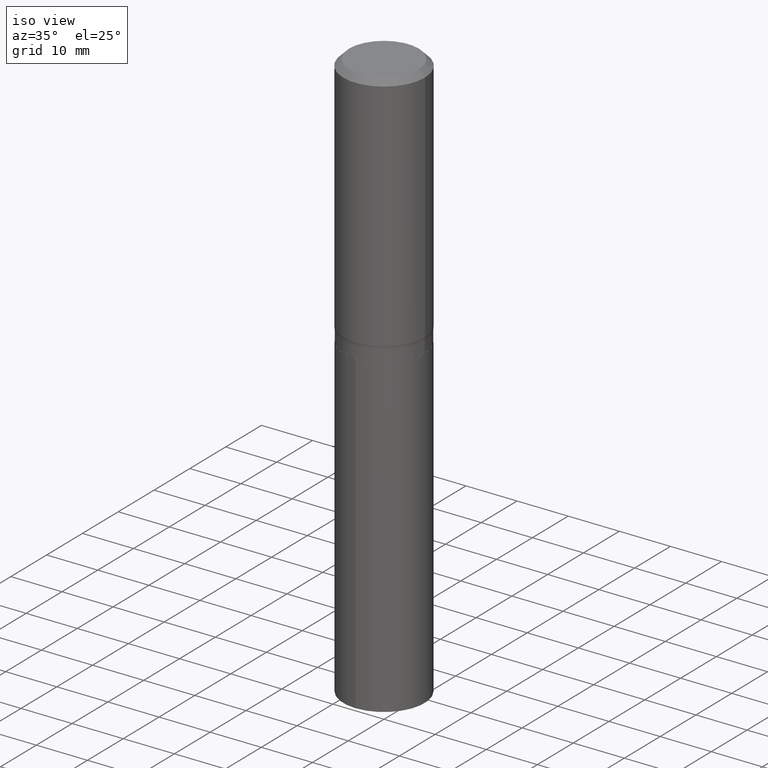
[diagram: clean part render]
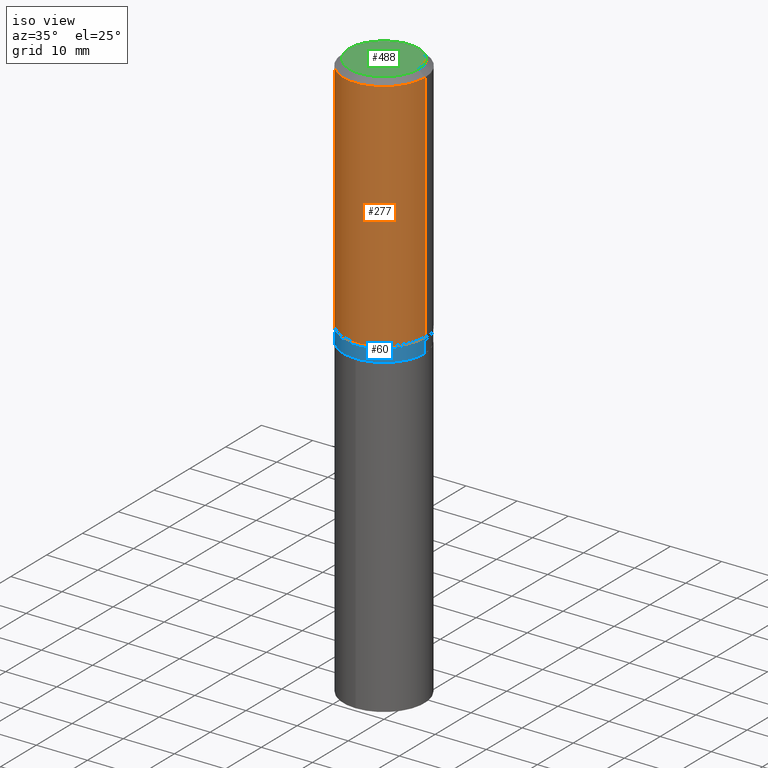
[diagram: same view with three faces highlighted in distinct colors, each labeled with its STEP entity id]
A machine part, iso view with three faces highlighted in distinct colors.
Their STEP definitions:

[orange] entity #277 — the highlighted cylindrical surface (partial cylindrical patch) has radius 7.9997 mm, axis along (-0, 0, 1).
#6 = DIRECTION ( 'NONE',  ( 1.000000000000000000, -6.982962677686267499E-15, 0.000000000000000000 ) ) ;
#76 = LINE ( 'NONE', #77, #156 ) ;
#77 = CARTESIAN_POINT ( 'NONE',  ( 0.3149500000000001743, -2.199284095337290660E-15, 1.535751875536930690E-29 ) ) ;
#89 = AXIS2_PLACEMENT_3D ( 'NONE', #204, #395, #462 ) ;
#97 = CARTESIAN_POINT ( 'NONE',  ( 0.3149500000000002853, -8.677044047699501290E-15, -1.855304188596502035 ) ) ;
#115 = CYLINDRICAL_SURFACE ( 'NONE', #89, 0.3149500000000001743 ) ;
#119 = VERTEX_POINT ( 'NONE', #120 ) ;
#120 = CARTESIAN_POINT ( 'NONE',  ( 0.3149500000000000077, -2.364230402487588149E-15, -0.04724250000000029120 ) ) ;
#125 = EDGE_LOOP ( 'NONE', ( #232, #382, #471, #441 ) ) ;
#132 = CARTESIAN_POINT ( 'NONE',  ( -0.3149500000000001743, 2.237854346276436774E-15, -1.549218606675783237E-29 ) ) ;
#134 = CARTESIAN_POINT ( 'NONE',  ( -0.3149500000000002853, -4.239905606085773857E-15, -1.855304188596502035 ) ) ;
#142 = EDGE_CURVE ( 'NONE', #465, #119, #76, .T. ) ;
#156 = VECTOR ( 'NONE', #283, 39.37007874015748143 ) ;
#159 = FACE_OUTER_BOUND ( 'NONE', #125, .T. ) ;
#167 = EDGE_CURVE ( 'NONE', #411, #465, #202, .T. ) ;
#202 = CIRCLE ( 'NONE', #324, 0.3149500000000002853 ) ;
#204 = CARTESIAN_POINT ( 'NONE',  ( 0.000000000000000000, 0.000000000000000000, 0.000000000000000000 ) ) ;
#214 = DIRECTION ( 'NONE',  ( -2.445468806185136877E-29, 3.491481338843145188E-15, 1.000000000000000000 ) ) ;
#232 = ORIENTED_EDGE ( 'NONE', *, *, #295, .F. ) ;
#246 = VERTEX_POINT ( 'NONE', #425 ) ;
#277 = ADVANCED_FACE ( 'NONE', ( #159 ), #115, .T. ) ;
#283 = DIRECTION ( 'NONE',  ( -2.445468806185136877E-29, 3.491481338843145188E-15, 1.000000000000000000 ) ) ;
#295 = EDGE_CURVE ( 'NONE', #411, #246, #475, .T. ) ;
#302 = DIRECTION ( 'NONE',  ( -2.445468806185136597E-29, 3.491481338843145583E-15, 1.000000000000000000 ) ) ;
#308 = VECTOR ( 'NONE', #214, 39.37007874015748143 ) ;
#324 = AXIS2_PLACEMENT_3D ( 'NONE', #468, #430, #6 ) ;
#333 = AXIS2_PLACEMENT_3D ( 'NONE', #437, #302, #440 ) ;
#382 = ORIENTED_EDGE ( 'NONE', *, *, #167, .T. ) ;
#395 = DIRECTION ( 'NONE',  ( -2.445468806185136597E-29, 3.491481338843145583E-15, 1.000000000000000000 ) ) ;
#411 = VERTEX_POINT ( 'NONE', #134 ) ;
#418 = CIRCLE ( 'NONE', #333, 0.3149500000000000077 ) ;
#425 = CARTESIAN_POINT ( 'NONE',  ( -0.3149500000000000077, -1.083498783479817878E-15, -0.04724250000000029120 ) ) ;
#430 = DIRECTION ( 'NONE',  ( -2.445468806185136597E-29, 3.491481338843145583E-15, 1.000000000000000000 ) ) ;
#437 = CARTESIAN_POINT ( 'NONE',  ( 1.155300600762020273E-30, -1.649463071502983032E-16, -0.04724250000000029120 ) ) ;
#440 = DIRECTION ( 'NONE',  ( 1.000000000000000000, -6.982962677686266711E-15, 0.000000000000000000 ) ) ;
#441 = ORIENTED_EDGE ( 'NONE', *, *, #442, .F. ) ;
#442 = EDGE_CURVE ( 'NONE', #246, #119, #418, .T. ) ;
#462 = DIRECTION ( 'NONE',  ( 1.000000000000000000, -6.982962677686265922E-15, 4.876176775795935232E-29 ) ) ;
#465 = VERTEX_POINT ( 'NONE', #97 ) ;
#468 = CARTESIAN_POINT ( 'NONE',  ( 4.537088519197371614E-29, -6.477759952362211419E-15, -1.855304188596502035 ) ) ;
#471 = ORIENTED_EDGE ( 'NONE', *, *, #142, .T. ) ;
#475 = LINE ( 'NONE', #132, #308 ) ;

[blue] entity #60 — the highlighted cylindrical surface (partial cylindrical patch) has radius 7.9375 mm, axis along (-0, 0, 1).
#1 = EDGE_CURVE ( 'NONE', #180, #492, #428, .T. ) ;
#13 = LINE ( 'NONE', #278, #404 ) ;
#18 = EDGE_CURVE ( 'NONE', #492, #207, #146, .T. ) ;
#25 = DIRECTION ( 'NONE',  ( 1.000000000000000000, -6.982962677686265133E-15, 0.000000000000000000 ) ) ;
#31 = VERTEX_POINT ( 'NONE', #336 ) ;
#37 = CARTESIAN_POINT ( 'NONE',  ( 0.3125000000000000000, -2.182175836776958347E-15, 1.523805242436230075E-29 ) ) ;
#55 = FACE_OUTER_BOUND ( 'NONE', #323, .T. ) ;
#60 = ADVANCED_FACE ( 'NONE', ( #55 ), #136, .T. ) ;
#98 = DIRECTION ( 'NONE',  ( 1.000000000000000000, -6.982962677686266711E-15, 4.876176775795936353E-29 ) ) ;
#103 = EDGE_CURVE ( 'NONE', #180, #31, #13, .T. ) ;
#136 = CYLINDRICAL_SURFACE ( 'NONE', #282, 0.3125000000000000000 ) ;
#146 = LINE ( 'NONE', #37, #474 ) ;
#154 = ORIENTED_EDGE ( 'NONE', *, *, #103, .F. ) ;
#170 = ORIENTED_EDGE ( 'NONE', *, *, #420, .F. ) ;
#171 = CARTESIAN_POINT ( 'NONE',  ( 0.3125000000000000000, -9.053411111620267762E-15, -1.967999999999999527 ) ) ;
#173 = DIRECTION ( 'NONE',  ( -2.445468806185136597E-29, 3.491481338843145583E-15, 1.000000000000000000 ) ) ;
#180 = VERTEX_POINT ( 'NONE', #279 ) ;
#181 = CARTESIAN_POINT ( 'NONE',  ( 4.584520370955274765E-29, -6.545480065929243438E-15, -1.874699999999999589 ) ) ;
#207 = VERTEX_POINT ( 'NONE', #247 ) ;
#247 = CARTESIAN_POINT ( 'NONE',  ( 0.3125000000000000000, -8.727655902706201785E-15, -1.874699999999999589 ) ) ;
#263 = CIRCLE ( 'NONE', #342, 0.3125000000000000000 ) ;
#276 = CARTESIAN_POINT ( 'NONE',  ( 4.812682610572347912E-29, -6.871235274843308626E-15, -1.967999999999999527 ) ) ;
#278 = CARTESIAN_POINT ( 'NONE',  ( -0.3125000000000000000, 2.220446049250313081E-15, -1.537167215704658232E-29 ) ) ;
#279 = CARTESIAN_POINT ( 'NONE',  ( -0.3125000000000000000, -4.487911621135963346E-15, -1.967999999999999527 ) ) ;
#282 = AXIS2_PLACEMENT_3D ( 'NONE', #444, #306, #98 ) ;
#306 = DIRECTION ( 'NONE',  ( -2.445468806185136597E-29, 3.491481338843145583E-15, 1.000000000000000000 ) ) ;
#323 = EDGE_LOOP ( 'NONE', ( #154, #469, #463, #170 ) ) ;
#336 = CARTESIAN_POINT ( 'NONE',  ( -0.3125000000000000000, -4.487911621135963346E-15, -1.874699999999999589 ) ) ;
#342 = AXIS2_PLACEMENT_3D ( 'NONE', #181, #173, #25 ) ;
#353 = DIRECTION ( 'NONE',  ( -2.445468806185136877E-29, 3.491481338843145188E-15, 1.000000000000000000 ) ) ;
#361 = DIRECTION ( 'NONE',  ( -2.445468806185136877E-29, 3.491481338843145188E-15, 1.000000000000000000 ) ) ;
#388 = DIRECTION ( 'NONE',  ( 1.000000000000000000, -6.982962677686269077E-15, 0.000000000000000000 ) ) ;
#404 = VECTOR ( 'NONE', #361, 39.37007874015748143 ) ;
#420 = EDGE_CURVE ( 'NONE', #31, #207, #263, .T. ) ;
#428 = CIRCLE ( 'NONE', #483, 0.3125000000000000000 ) ;
#444 = CARTESIAN_POINT ( 'NONE',  ( 0.000000000000000000, 0.000000000000000000, 0.000000000000000000 ) ) ;
#463 = ORIENTED_EDGE ( 'NONE', *, *, #18, .T. ) ;
#469 = ORIENTED_EDGE ( 'NONE', *, *, #1, .T. ) ;
#474 = VECTOR ( 'NONE', #353, 39.37007874015748143 ) ;
#483 = AXIS2_PLACEMENT_3D ( 'NONE', #276, #485, #388 ) ;
#485 = DIRECTION ( 'NONE',  ( -2.445468806185136597E-29, 3.491481338843145583E-15, 1.000000000000000000 ) ) ;
#492 = VERTEX_POINT ( 'NONE', #171 ) ;

[green] entity #488 — the highlighted planar face has unit normal (0, -0, -1).
#12 = DIRECTION ( 'NONE',  ( -2.445468806185136597E-29, 3.491481338843145583E-15, 1.000000000000000000 ) ) ;
#15 = DIRECTION ( 'NONE',  ( 1.000000000000000000, -6.982962677686267499E-15, 4.876236838442819371E-29 ) ) ;
#21 = PLANE ( 'NONE',  #203 ) ;
#45 = ORIENTED_EDGE ( 'NONE', *, *, #415, .T. ) ;
#51 = VERTEX_POINT ( 'NONE', #479 ) ;
#56 = DIRECTION ( 'NONE',  ( 2.438088387897960049E-29, -3.491481338843145188E-15, -1.000000000000000000 ) ) ;
#99 = DIRECTION ( 'NONE',  ( 1.000000000000000000, -6.982962677686267499E-15, 4.876236838442819371E-29 ) ) ;
#131 = CARTESIAN_POINT ( 'NONE',  ( -1.001697619218022568E-46, 1.430158722866391086E-32, 4.096137381448112218E-18 ) ) ;
#150 = AXIS2_PLACEMENT_3D ( 'NONE', #208, #12, #15 ) ;
#168 = CARTESIAN_POINT ( 'NONE',  ( -5.008488096090112840E-47, 7.150793614331955432E-33, 2.048068690724056109E-18 ) ) ;
#177 = AXIS2_PLACEMENT_3D ( 'NONE', #131, #409, #99 ) ;
#203 = AXIS2_PLACEMENT_3D ( 'NONE', #168, #56, #407 ) ;
#208 = CARTESIAN_POINT ( 'NONE',  ( -1.001697619218022568E-46, 1.430158722866391086E-32, 4.096137381448112218E-18 ) ) ;
#213 = FACE_OUTER_BOUND ( 'NONE', #422, .T. ) ;
#284 = CIRCLE ( 'NONE', #150, 0.2677074999999999871 ) ;
#325 = CARTESIAN_POINT ( 'NONE',  ( 0.2677074999999999871, -2.081133459643432233E-15, 4.096137381461924987E-18 ) ) ;
#334 = ORIENTED_EDGE ( 'NONE', *, *, #466, .T. ) ;
#407 = DIRECTION ( 'NONE',  ( -1.000000000000000000, 6.982962677686265922E-15, -4.876176775795935793E-29 ) ) ;
#409 = DIRECTION ( 'NONE',  ( -2.445468806185136597E-29, 3.491481338843145583E-15, 1.000000000000000000 ) ) ;
#415 = EDGE_CURVE ( 'NONE', #490, #51, #467, .T. ) ;
#422 = EDGE_LOOP ( 'NONE', ( #334, #45 ) ) ;
#466 = EDGE_CURVE ( 'NONE', #51, #490, #284, .T. ) ;
#467 = CIRCLE ( 'NONE', #177, 0.2677074999999999871 ) ;
#479 = CARTESIAN_POINT ( 'NONE',  ( -0.2677074999999999871, 1.951864634611843833E-15, 4.096137381434750116E-18 ) ) ;
#488 = ADVANCED_FACE ( 'NONE', ( #213 ), #21, .F. ) ;
#490 = VERTEX_POINT ( 'NONE', #325 ) ;